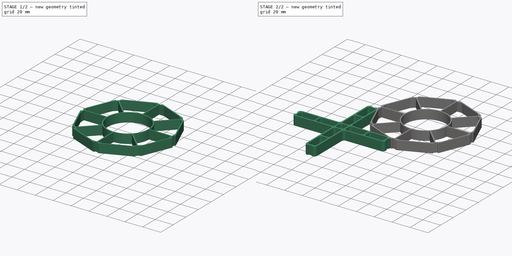
[diagram: build sequence overview — one tinted view per stage of 2, left to right]
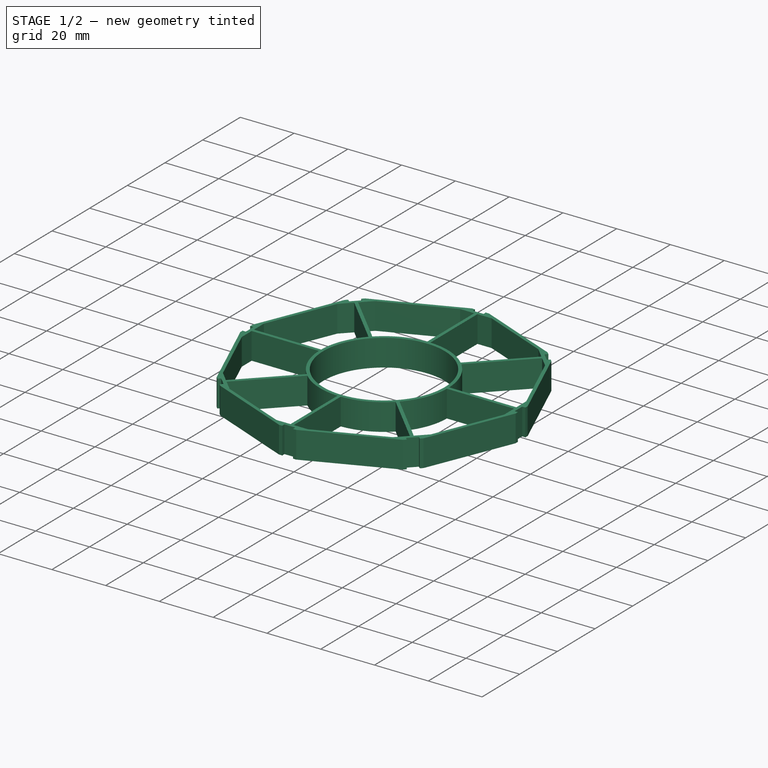
[diagram: stage 1 of 2 — iso view after this stage's code; geometry added in this stage tinted green]
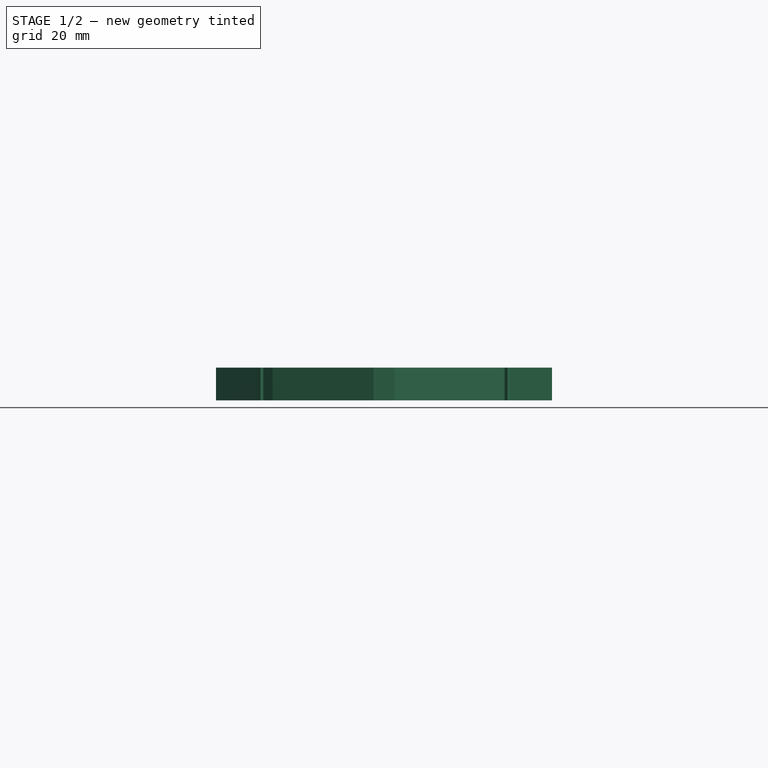
[diagram: stage 1 of 2 — front view after this stage's code; geometry added in this stage tinted green]
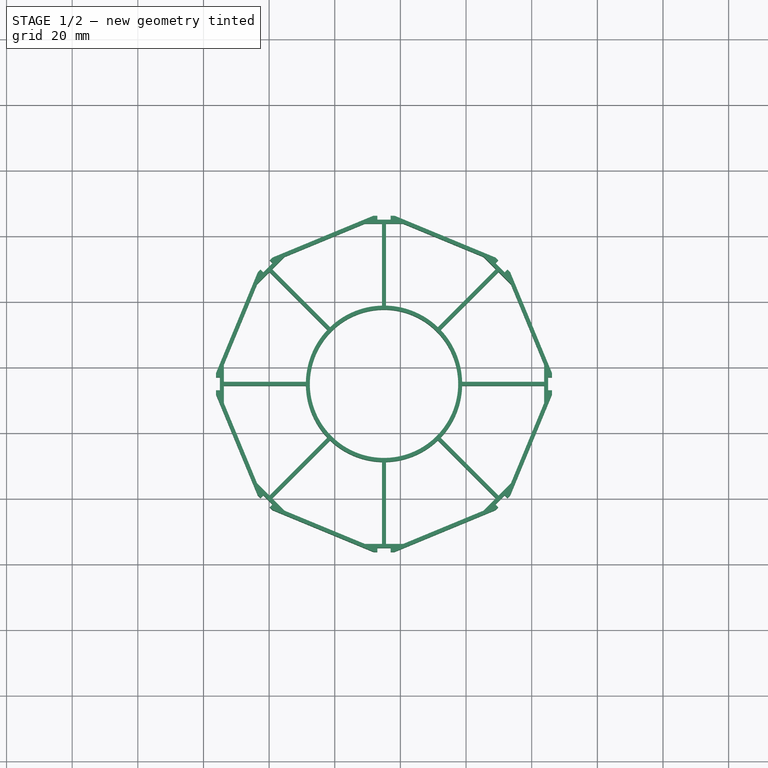
[diagram: stage 1 of 2 — top view after this stage's code; geometry added in this stage tinted green]
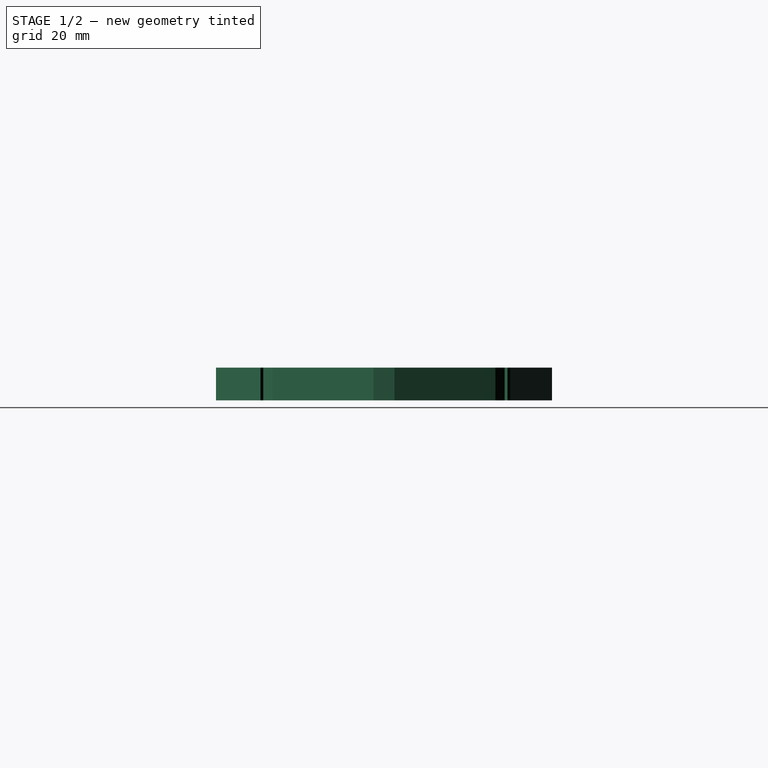
[diagram: stage 1 of 2 — right view after this stage's code; geometry added in this stage tinted green]
FCSTD DOCUMENT  (FreeCAD 0.21R33694 (Git))
Label: LengthCalibration
License: All rights reserved
LicenseURL: http://en.wikipedia.org/wiki/All_rights_reserved
objects: Sketcher::SketchObject×2, PartDesign::Pad×2, PartDesign::Body×2
note: 8 computed .brp shape members not serialized (recipe doc carries the construction recipe); baked Part::Feature solids carry a one-line shape summary decoded from their .brp

FEATURE [PartDesign::Body] Body  label="Cross"
  Group = -> [Sketch,Pad]
  Origin = -> Origin
  Tip = -> Pad
FEATURE [Sketcher::SketchObject] Sketch001
  FullyConstrained = true
  MapMode = 5
  Support = -> [XY_Plane001]
  sketch-geometry (128):
    g0: LineSegment StartX=53 StartY=105 StartZ=0 EndX=57 EndY=105 EndZ=0
    g1: LineSegment StartX=53 StartY=105 StartZ=0 EndX=53 EndY=106.2 EndZ=0
    g2: LineSegment StartX=57 StartY=105 StartZ=0 EndX=57 EndY=106.2 EndZ=0
    g3: LineSegment StartX=19.6447 StartY=90.3553 StartZ=0 EndX=90.3553 EndY=19.6447 EndZ=0
    g4: LineSegment StartX=19.6447 StartY=19.6447 StartZ=0 EndX=90.3553 EndY=90.3553 EndZ=0
    g5: LineSegment StartX=55 StartY=105 StartZ=0 EndX=55 EndY=5 EndZ=0
    g6: LineSegment StartX=5 StartY=55 StartZ=0 EndX=105 EndY=55 EndZ=0
    g7: GeomPoint X=55 Y=55 Z=0
    g8: LineSegment StartX=19.6447 StartY=90.3553 StartZ=0 EndX=19.6447 EndY=19.6447 EndZ=0
    g9: LineSegment StartX=18.2304 StartY=88.9411 StartZ=0 EndX=21.0589 EndY=91.7696 EndZ=0
    g10: LineSegment StartX=21.0589 StartY=91.7696 StartZ=0 EndX=20.2103 EndY=92.6181 EndZ=0
    g11: LineSegment StartX=18.2304 StartY=88.9411 StartZ=0 EndX=17.3819 EndY=89.7897 EndZ=0
    g12: LineSegment StartX=53 StartY=106.2 StartZ=0 EndX=51.8 EndY=106.2 EndZ=0
    g13: LineSegment StartX=57 StartY=106.2 StartZ=0 EndX=58.2 EndY=106.2 EndZ=0
    g14: LineSegment StartX=20.2103 StartY=92.6181 StartZ=0 EndX=21.0589 EndY=93.4666 EndZ=0
    g15: LineSegment StartX=17.3819 StartY=89.7897 StartZ=0 EndX=16.5334 EndY=88.9411 EndZ=0
    g16: LineSegment StartX=21.0589 StartY=93.4666 StartZ=0 EndX=51.8 EndY=106.2 EndZ=0
    g17: LineSegment StartX=53 StartY=105 StartZ=0 EndX=53 EndY=103.8 EndZ=0
    g18: LineSegment StartX=49.1416 StartY=103.8 StartZ=0 EndX=48.6824 EndY=104.909 EndZ=0
    g19: LineSegment StartX=24.6357 StartY=93.6493 StartZ=0 EndX=49.1416 EndY=103.8 EndZ=0
    g20: LineSegment StartX=18.2304 StartY=88.9411 StartZ=0 EndX=19.079 EndY=88.0926 EndZ=0
    g21: LineSegment StartX=3.8 StartY=58.2 StartZ=0 EndX=3.8 EndY=57 EndZ=0
    g22: LineSegment StartX=3.8 StartY=57 StartZ=0 EndX=5 EndY=57 EndZ=0
    g23: LineSegment StartX=5 StartY=57 StartZ=0 EndX=5 EndY=53 EndZ=0
    g24: LineSegment StartX=5 StartY=53 StartZ=0 EndX=3.8 EndY=53 EndZ=0
    g25: LineSegment StartX=3.8 StartY=53 StartZ=0 EndX=3.8 EndY=51.8 EndZ=0
    g26: LineSegment StartX=16.5334 StartY=88.9411 StartZ=0 EndX=3.8 EndY=58.2 EndZ=0
    g27: LineSegment StartX=16.3507 StartY=85.3643 StartZ=0 EndX=6.2 EndY=60.8584 EndZ=0
    g28: LineSegment StartX=16.3507 StartY=85.3643 StartZ=0 EndX=15.242 EndY=85.8235 EndZ=0
    g29: LineSegment StartX=5 StartY=53 StartZ=0 EndX=6.2 EndY=53 EndZ=0
    g30: LineSegment StartX=17.3819 StartY=20.2103 StartZ=0 EndX=16.5334 EndY=21.0589 EndZ=0
    g31: LineSegment StartX=18.2304 StartY=21.0589 StartZ=0 EndX=17.3819 EndY=20.2103 EndZ=0
    g32: LineSegment StartX=21.0589 StartY=18.2304 StartZ=0 EndX=18.2304 EndY=21.0589 EndZ=0
    g33: LineSegment StartX=21.0589 StartY=18.2304 StartZ=0 EndX=20.2103 EndY=17.3819 EndZ=0
    g34: LineSegment StartX=20.2103 StartY=17.3819 StartZ=0 EndX=21.0589 EndY=16.5334 EndZ=0
    g35: LineSegment StartX=6.2 StartY=49.1416 StartZ=0 EndX=5.09134 EndY=48.6824 EndZ=0
    g36: LineSegment StartX=3.8 StartY=51.8 StartZ=0 EndX=16.5334 EndY=21.0589 EndZ=0
    g37: LineSegment StartX=6.2 StartY=49.1416 StartZ=0 EndX=16.3507 EndY=24.6357 EndZ=0
    g38: LineSegment StartX=16.3507 StartY=85.3643 StartZ=0 EndX=20.0689 EndY=89.0825 EndZ=0
    g39: LineSegment StartX=20.0689 StartY=89.0825 StartZ=0 EndX=20.9175 EndY=89.9311 EndZ=0
    g40: LineSegment StartX=20.9175 StartY=89.9311 StartZ=0 EndX=24.6357 EndY=93.6493 EndZ=0
    g41: LineSegment StartX=20.0689 StartY=89.0825 StartZ=0 EndX=37.7466 EndY=71.4049 EndZ=0
    g42: LineSegment StartX=20.9175 StartY=89.9311 StartZ=0 EndX=38.5951 EndY=72.2534 EndZ=0
    g43: LineSegment StartX=21.0589 StartY=18.2304 StartZ=0 EndX=21.9074 EndY=19.079 EndZ=0
    g44: LineSegment StartX=21.0589 StartY=16.5334 StartZ=0 EndX=51.8 EndY=3.8 EndZ=0
    g45: LineSegment StartX=24.6357 StartY=16.3507 StartZ=0 EndX=24.1765 EndY=15.242 EndZ=0
    g46: LineSegment StartX=51.8 StartY=3.8 StartZ=0 EndX=53 EndY=3.8 EndZ=0
    g47: LineSegment StartX=53 StartY=3.8 StartZ=0 EndX=53 EndY=5 EndZ=0
    g48: LineSegment StartX=53 StartY=5 StartZ=0 EndX=57 EndY=5 EndZ=0
    g49: LineSegment StartX=57 StartY=5 StartZ=0 EndX=57 EndY=3.8 EndZ=0
    g50: LineSegment StartX=57 StartY=3.8 StartZ=0 EndX=58.2 EndY=3.8 EndZ=0
    g51: LineSegment StartX=57 StartY=5 StartZ=0 EndX=57 EndY=6.2 EndZ=0
    g52: LineSegment StartX=24.6357 StartY=16.3507 StartZ=0 EndX=49.1416 EndY=6.2 EndZ=0
    g53: LineSegment StartX=58.2 StartY=3.8 StartZ=0 EndX=88.9411 EndY=16.5334 EndZ=0
    g54: LineSegment StartX=60.8584 StartY=6.2 StartZ=0 EndX=61.3176 EndY=5.09134 EndZ=0
    g55: LineSegment StartX=89.7897 StartY=17.3819 StartZ=0 EndX=88.9411 EndY=16.5334 EndZ=0
    g56: LineSegment StartX=88.9411 StartY=18.2304 StartZ=0 EndX=89.7897 EndY=17.3819 EndZ=0
    g57: LineSegment StartX=91.7696 StartY=21.0589 StartZ=0 EndX=88.9411 EndY=18.2304 EndZ=0
    g58: LineSegment StartX=91.7696 StartY=21.0589 StartZ=0 EndX=92.6181 EndY=20.2103 EndZ=0
    g59: LineSegment StartX=92.6181 StartY=20.2103 StartZ=0 EndX=93.4666 EndY=21.0589 EndZ=0
    g60: LineSegment StartX=60.8584 StartY=6.2 StartZ=0 EndX=85.3643 EndY=16.3507 EndZ=0
    g61: LineSegment StartX=91.7696 StartY=21.0589 StartZ=0 EndX=90.921 EndY=21.9074 EndZ=0
    g62: LineSegment StartX=93.4666 StartY=21.0589 StartZ=0 EndX=106.2 EndY=51.8 EndZ=0
    g63: LineSegment StartX=93.6493 StartY=24.6357 StartZ=0 EndX=94.758 EndY=24.1765 EndZ=0
    g64: LineSegment StartX=106.2 StartY=51.8 StartZ=0 EndX=106.2 EndY=53 EndZ=0
    g65: LineSegment StartX=106.2 StartY=53 StartZ=0 EndX=105 EndY=53 EndZ=0
    g66: LineSegment StartX=105 StartY=53 StartZ=0 EndX=105 EndY=57 EndZ=0
    g67: LineSegment StartX=105 StartY=57 StartZ=0 EndX=106.2 EndY=57 EndZ=0
    g68: LineSegment StartX=106.2 StartY=57 StartZ=0 EndX=106.2 EndY=58.2 EndZ=0
    g69: LineSegment StartX=105 StartY=57 StartZ=0 EndX=103.8 EndY=57 EndZ=0
    g70: LineSegment StartX=103.8 StartY=49.1416 StartZ=0 EndX=93.6493 EndY=24.6357 EndZ=0
    g71: LineSegment StartX=106.2 StartY=58.2 StartZ=0 EndX=93.4666 EndY=88.9411 EndZ=0
    g72: LineSegment StartX=103.8 StartY=60.8584 StartZ=0 EndX=104.909 EndY=61.3176 EndZ=0
    g73: LineSegment StartX=92.6181 StartY=89.7897 StartZ=0 EndX=93.4666 EndY=88.9411 EndZ=0
    g74: LineSegment StartX=91.7696 StartY=88.9411 StartZ=0 EndX=92.6181 EndY=89.7897 EndZ=0
    g75: LineSegment StartX=88.9411 StartY=91.7696 StartZ=0 EndX=91.7696 EndY=88.9411 EndZ=0
    g76: LineSegment StartX=88.9411 StartY=91.7696 StartZ=0 EndX=89.7897 EndY=92.6181 EndZ=0
    g77: LineSegment StartX=89.7897 StartY=92.6181 StartZ=0 EndX=88.9411 EndY=93.4666 EndZ=0
    g78: LineSegment StartX=103.8 StartY=60.8584 StartZ=0 EndX=93.6493 EndY=85.3643 EndZ=0
    g79: LineSegment StartX=88.9411 StartY=91.7696 StartZ=0 EndX=88.0926 EndY=90.921 EndZ=0
    g80: LineSegment StartX=58.2 StartY=106.2 StartZ=0 EndX=88.9411 EndY=93.4666 EndZ=0
    g81: LineSegment StartX=60.8584 StartY=103.8 StartZ=0 EndX=85.3643 EndY=93.6493 EndZ=0
    g82: LineSegment StartX=85.3643 StartY=93.6493 StartZ=0 EndX=85.8235 EndY=94.758 EndZ=0
    g83: LineSegment StartX=49.1416 StartY=103.8 StartZ=0 EndX=54.4 EndY=103.8 EndZ=0
    g84: LineSegment StartX=54.4 StartY=103.8 StartZ=0 EndX=55.6 EndY=103.8 EndZ=0
    g85: LineSegment StartX=55.6 StartY=103.8 StartZ=0 EndX=60.8584 EndY=103.8 EndZ=0
    g86: LineSegment StartX=89.0825 StartY=89.9311 StartZ=0 EndX=85.3643 EndY=93.6493 EndZ=0
    g87: LineSegment StartX=93.6493 StartY=85.3643 StartZ=0 EndX=89.9311 EndY=89.0825 EndZ=0
    g88: LineSegment StartX=89.9311 StartY=89.0825 StartZ=0 EndX=89.0825 EndY=89.9311 EndZ=0
    g89: LineSegment StartX=103.8 StartY=60.8584 StartZ=0 EndX=103.8 EndY=55.6 EndZ=0
    g90: LineSegment StartX=103.8 StartY=55.6 StartZ=0 EndX=103.8 EndY=54.4 EndZ=0
    g91: LineSegment StartX=103.8 StartY=54.4 StartZ=0 EndX=103.8 EndY=49.1416 EndZ=0
    g92: LineSegment StartX=89.9311 StartY=20.9175 StartZ=0 EndX=93.6493 EndY=24.6357 EndZ=0
    g93: LineSegment StartX=85.3643 StartY=16.3507 StartZ=0 EndX=89.0825 EndY=20.0689 EndZ=0
    g94: LineSegment StartX=89.0825 StartY=20.0689 StartZ=0 EndX=89.9311 EndY=20.9175 EndZ=0
    g95: LineSegment StartX=55.6 StartY=6.2 StartZ=0 EndX=60.8584 EndY=6.2 EndZ=0
    g96: LineSegment StartX=49.1416 StartY=6.2 StartZ=0 EndX=54.4 EndY=6.2 EndZ=0
    g97: LineSegment StartX=54.4 StartY=6.2 StartZ=0 EndX=55.6 EndY=6.2 EndZ=0
    g98: LineSegment StartX=20.9175 StartY=20.0689 StartZ=0 EndX=24.6357 EndY=16.3507 EndZ=0
    g99: LineSegment StartX=16.3507 StartY=24.6357 StartZ=0 EndX=20.0689 EndY=20.9175 EndZ=0
    g100: LineSegment StartX=20.0689 StartY=20.9175 StartZ=0 EndX=20.9175 EndY=20.0689 EndZ=0
    g101: LineSegment StartX=6.2 StartY=54.4 StartZ=0 EndX=6.2 EndY=49.1416 EndZ=0
    g102: LineSegment StartX=6.2 StartY=60.8584 StartZ=0 EndX=6.2 EndY=55.6 EndZ=0
    g103: LineSegment StartX=6.2 StartY=55.6 StartZ=0 EndX=6.2 EndY=54.4 EndZ=0
    g104: LineSegment StartX=6.2 StartY=55.6 StartZ=0 EndX=31.2 EndY=55.6 EndZ=0
    g105: LineSegment StartX=6.2 StartY=54.4 StartZ=0 EndX=31.2 EndY=54.4 EndZ=0
    g106: LineSegment StartX=54.4 StartY=103.8 StartZ=0 EndX=54.4 EndY=78.8 EndZ=0
    g107: LineSegment StartX=55.6 StartY=103.8 StartZ=0 EndX=55.6 EndY=78.8 EndZ=0
    g108: LineSegment StartX=89.0825 StartY=89.9311 StartZ=0 EndX=71.4049 EndY=72.2534 EndZ=0
    g109: LineSegment StartX=89.9311 StartY=89.0825 StartZ=0 EndX=72.2534 EndY=71.4049 EndZ=0
    g110: LineSegment StartX=103.8 StartY=55.6 StartZ=0 EndX=78.8 EndY=55.6 EndZ=0
    g111: LineSegment StartX=103.8 StartY=54.4 StartZ=0 EndX=78.8 EndY=54.4 EndZ=0
    g112: LineSegment StartX=89.9311 StartY=20.9175 StartZ=0 EndX=72.2534 EndY=38.5951 EndZ=0
    g113: LineSegment StartX=89.0825 StartY=20.0689 StartZ=0 EndX=71.4049 EndY=37.7466 EndZ=0
    g114: LineSegment StartX=55.6 StartY=6.2 StartZ=0 EndX=55.6 EndY=31.2 EndZ=0
    g115: LineSegment StartX=54.4 StartY=6.2 StartZ=0 EndX=54.4 EndY=31.2 EndZ=0
    g116: LineSegment StartX=20.9175 StartY=20.0689 StartZ=0 EndX=38.5951 EndY=37.7466 EndZ=0
    g117: LineSegment StartX=20.0689 StartY=20.9175 StartZ=0 EndX=37.7466 EndY=38.5951 EndZ=0
    g118: ArcOfCircle CenterX=55 CenterY=55 CenterZ=0 NormalX=0 NormalY=0 NormalZ=1 AngleXU=0 Radius=23.8076 StartAngle=0.810603 EndAngle=1.54559
    g119: ArcOfCircle CenterX=55 CenterY=55 CenterZ=0 NormalX=0 NormalY=0 NormalZ=1 AngleXU=0 Radius=23.8076 StartAngle=1.596 EndAngle=2.33099
    g120: ArcOfCircle CenterX=55 CenterY=55 CenterZ=0 NormalX=0 NormalY=0 NormalZ=1 AngleXU=0 Radius=23.8076 StartAngle=0.0252047 EndAngle=0.760193
    g121: ArcOfCircle CenterX=55 CenterY=55 CenterZ=0 NormalX=0 NormalY=0 NormalZ=1 AngleXU=0 Radius=23.8076 StartAngle=5.52299 EndAngle=6.25798
    g122: ArcOfCircle CenterX=55 CenterY=55 CenterZ=0 NormalX=0 NormalY=0 NormalZ=1 AngleXU=0 Radius=23.8076 StartAngle=4.73759 EndAngle=5.47258
    g123: ArcOfCircle CenterX=55 CenterY=55 CenterZ=0 NormalX=0 NormalY=0 NormalZ=1 AngleXU=0 Radius=23.8076 StartAngle=3.9522 EndAngle=4.68718
    g124: ArcOfCircle CenterX=55 CenterY=55 CenterZ=0 NormalX=0 NormalY=0 NormalZ=1 AngleXU=0 Radius=23.8076 StartAngle=3.1668 EndAngle=3.90179
    g125: ArcOfCircle CenterX=55 CenterY=55 CenterZ=0 NormalX=0 NormalY=0 NormalZ=1 AngleXU=0 Radius=23.8076 StartAngle=2.3814 EndAngle=3.11639
    g126: Circle CenterX=55 CenterY=55 CenterZ=0 NormalX=0 NormalY=0 NormalZ=1 AngleXU=0 Radius=22.6076
    g127: LineSegment StartX=38.5951 StartY=72.2534 StartZ=0 EndX=39.422 EndY=71.3838 EndZ=0
  constraints (364):
    c: Coincident(g1,g0)
    c: Vertical(g1)
    c: Coincident(g2,g0)
    c: Vertical(g2)
    c: DistanceX(g1,g2) = 4
    c: DistanceY(g1,g1) = 1.2
    c: Perpendicular(g4,g3)
    c: Vertical(g5)
    c: Horizontal(g6)
    c: DistanceY(g5,g5) = 100
    c: Equal(g5,g6)
    c: Equal(g6,g4)
    c: Symmetric(g5,g5,g7)
    c: Symmetric(g6,g6,g7)
    c: Symmetric(g4,g4,g7)
    c: Symmetric(g3,g3,g7)
    c: Symmetric(g3,g4,g5)
    c: Coincident(g8,g3)
    c: Coincident(g8,g4)
    c: Horizontal(g0)
    c: Symmetric(g0,g0,g5)
    c: Coincident(g10,g9)
    c: Coincident(g11,g9)
    c: Perpendicular(g9,g11)
    c: Perpendicular(g10,g9)
    c: Perpendicular(g9,g3)
    c: Symmetric(g9,g9,g3)
    c: Equal(g0,g9)
    c: Coincident(g12,g1)
    c: Horizontal(g12)
    c: Coincident(g13,g2)
    c: Horizontal(g13)
    c: Equal(g13,g2)
    c: Equal(g2,g1)
    c: Equal(g1,g12)
    c: Coincident(g14,g10)
    c: Coincident(g15,g11)
    c: Perpendicular(g11,g15)
    c: Perpendicular(g14,g10)
    c: Coincident(g16,g14)
    c: Coincident(g16,g12)
    c: Coincident(g17,g0)
    c: Vertical(g17)
    c: Coincident(g18,g83)
    c: PointOnObject(g18,g16)
    c: Perpendicular(g18,g16)
    c: Equal(g12,g17)
    c: Equal(g17,g18)
    c: Equal(g18,g14)
    c: Equal(g14,g10)
    c: Equal(g10,g11)
    c: Equal(g11,g15)
    c: Coincident(g19,g40)
    c: Coincident(g19,g83)
    c: Coincident(g20,g9)
    c: Equal(g15,g20)
    c: Parallel(g19,g16)
    c: Vertical(g21)
    c: Coincident(g21,g22)
    c: Horizontal(g22)
    c: Coincident(g22,g23)
    c: Vertical(g23)
    c: Coincident(g23,g24)
    c: Horizontal(g24)
    c: Coincident(g24,g25)
    c: Vertical(g25)
    c: Coincident(g26,g15)
    c: Coincident(g26,g21)
    c: Coincident(g27,g38)
    c: Coincident(g28,g38)
    c: PointOnObject(g28,g26)
    c: Perpendicular(g26,g28)
    c: Equal(g20,g28)
    c: Symmetric(g22,g23,g6)
    c: Equal(g9,g23)
    c: Equal(g28,g21)
    c: Equal(g21,g22)
    c: Equal(g22,g24)
    c: Equal(g24,g25)
    c: Parallel(g27,g26)
    c: Coincident(g102,g27)
    c: Coincident(g29,g23)
    c: Horizontal(g29)
    c: Equal(g25,g29)
    c: Coincident(g31,g32)
    c: Coincident(g33,g32)
    c: Perpendicular(g32,g33)
    c: Perpendicular(g31,g32)
    c: Coincident(g30,g31)
    c: Coincident(g34,g33)
    c: Perpendicular(g33,g34)
    c: Perpendicular(g30,g31)
    c: Equal(g30,g31)
    c: Equal(g31,g33)
    c: Symmetric(g31,g32,g4)
    c: Coincident(g35,g101)
    c: Equal(g29,g35)
    c: Equal(g35,g30)
    c: Equal(g23,g32)
    c: Equal(g34,g33)
    c: Perpendicular(g4,g32)
    c: Coincident(g36,g25)
    c: Coincident(g36,g30)
    c: PointOnObject(g35,g36)
    c: Perpendicular(g36,g35)
    c: Coincident(g37,g101)
    c: Parallel(g37,g36)
    c: Coincident(g38,g39)
    c: Parallel(g38,g9)
    c: PointOnObject(g20,g38)
    c: Perpendicular(g38,g20)
    c: Coincident(g39,g40)
    c: Parallel(g40,g9)
    c: Equal(g39,g20)
    c: Coincident(g41,g38)
    c: Coincident(g42,g40)
    c: Parallel(g41,g42)
    c: Parallel(g42,g3)
    c: Equal(g42,g41)
    c: Distance(g41) = 25
    c: Coincident(g99,g37)
    c: Coincident(g43,g32)
    c: Equal(g34,g43)
    c: Coincident(g44,g34)
    c: Coincident(g45,g98)
    c: PointOnObject(g45,g44)
    c: Perpendicular(g44,g45)
    c: Equal(g45,g43)
    c: DistanceX(g-1,g5) = 55
    c: DistanceY(g-1,g6) = 55
    c: Horizontal(g46)
    c: Coincident(g46,g47)
    c: Vertical(g47)
    c: Coincident(g47,g48)
    c: Horizontal(g48)
    c: Coincident(g48,g49)
    c: Vertical(g49)
    c: Coincident(g49,g50)
    c: Horizontal(g50)
    c: Symmetric(g47,g48,g5)
    c: Equal(g32,g48)
    c: Equal(g45,g46)
    c: Equal(g46,g47)
    c: Equal(g47,g49)
    c: Equal(g49,g50)
    c: Coincident(g44,g46)
    c: Coincident(g51,g48)
    c: Vertical(g51)
    c: Equal(g50,g51)
    c: Coincident(g52,g98)
    c: Coincident(g52,g96)
    c: Parallel(g52,g44)
    c: Coincident(g53,g50)
    c: Coincident(g54,g95)
    c: PointOnObject(g54,g53)
    c: Perpendicular(g53,g54)
    c: Equal(g51,g54)
    c: Coincident(g56,g57)
    c: Coincident(g58,g57)
    c: Perpendicular(g57,g58)
    c: Perpendicular(g56,g57)
    c: Coincident(g55,g56)
    c: Coincident(g59,g58)
    c: Perpendicular(g58,g59)
    c: Perpendicular(g55,g56)
    c: Equal(g55,g56)
    c: Equal(g56,g58)
    c: Equal(g59,g58)
    c: Equal(g48,g57)
    c: Equal(g54,g55)
    c: Symmetric(g56,g57,g3)
    c: Perpendicular(g3,g57)
    c: Coincident(g55,g53)
    c: Coincident(g60,g95)
    c: Parallel(g53,g60)
    c: Coincident(g61,g57)
    c: Coincident(g93,g60)
    c: Equal(g59,g61)
    c: Coincident(g62,g59)
    c: Coincident(g63,g92)
    c: PointOnObject(g63,g62)
    c: Perpendicular(g62,g63)
    c: Equal(g61,g63)
    c: Coincident(g62,g64)
    c: Vertical(g64)
    c: Coincident(g64,g65)
    c: Horizontal(g65)
    c: Coincident(g65,g66)
    c: Vertical(g66)
    c: Coincident(g66,g67)
    c: Horizontal(g67)
    c: Coincident(g67,g68)
    c: Vertical(g68)
    c: Equal(g57,g66)
    c: Equal(g63,g64)
    c: Equal(g64,g65)
    c: Equal(g65,g67)
    c: Equal(g67,g68)
    c: Symmetric(g66,g65,g6)
    c: Coincident(g69,g66)
    c: Horizontal(g69)
    c: Equal(g68,g69)
    c: Coincident(g70,g91)
    c: Coincident(g70,g92)
    c: Parallel(g70,g62)
    c: Coincident(g71,g68)
    c: Coincident(g72,g89)
    c: PointOnObject(g72,g71)
    c: Perpendicular(g71,g72)
    c: Equal(g69,g72)
    c: Coincident(g74,g75)
    c: Coincident(g76,g75)
    c: Perpendicular(g75,g76)
    c: Perpendicular(g74,g75)
    c: Coincident(g73,g74)
    c: Coincident(g77,g76)
    c: Perpendicular(g76,g77)
    c: Perpendicular(g73,g74)
    c: Equal(g73,g74)
    c: Equal(g74,g76)
    c: Equal(g77,g76)
    c: Equal(g66,g75)
    c: Equal(g72,g73)
    c: Symmetric(g74,g75,g4)
    c: Coincident(g73,g71)
    c: Perpendicular(g4,g75)
    c: Coincident(g78,g89)
    c: Coincident(g87,g78)
    c: Parallel(g78,g71)
    c: Coincident(g79,g75)
    c: Equal(g77,g79)
    c: Coincident(g80,g13)
    c: Coincident(g80,g77)
    c: Coincident(g81,g85)
    c: Coincident(g81,g86)
    c: Coincident(g82,g86)
    c: PointOnObject(g82,g80)
    c: Perpendicular(g80,g82)
    c: Equal(g79,g82)
    c: Parallel(g81,g80)
    c: Coincident(g83,g84)
    c: Horizontal(g83)
    c: PointOnObject(g17,g83)
    c: Coincident(g84,g85)
    c: Horizontal(g84)
    c: Horizontal(g85)
    c: Equal(g84,g39)
    c: Equal(g38,g40)
    c: Parallel(g39,g9)
    c: Equal(g40,g83)
    c: Coincident(g88,g86)
    c: Parallel(g86,g75)
    c: Coincident(g87,g88)
    c: Parallel(g87,g75)
    c: Parallel(g88,g75)
    c: PointOnObject(g79,g87)
    c: Perpendicular(g87,g79)
    c: Equal(g85,g86)
    c: Equal(g86,g87)
    c: Coincident(g89,g90)
    c: Vertical(g89)
    c: PointOnObject(g69,g89)
    c: Coincident(g90,g91)
    c: Vertical(g90)
    c: Vertical(g91)
    c: Equal(g87,g89)
    c: Equal(g89,g91)
    c: Coincident(g94,g92)
    c: Perpendicular(g92,g61)
    c: Coincident(g93,g94)
    c: PointOnObject(g61,g93)
    c: Perpendicular(g93,g61)
    c: Perpendicular(g94,g61)
    c: Parallel(g93,g57)
    c: Equal(g91,g92)
    c: Equal(g92,g93)
    c: Coincident(g97,g95)
    c: Horizontal(g95)
    c: Coincident(g96,g97)
    c: Horizontal(g96)
    c: Horizontal(g97)
    c: PointOnObject(g51,g96)
    c: Equal(g93,g95)
    c: Equal(g95,g96)
    c: Coincident(g100,g98)
    c: Parallel(g98,g32)
    c: Coincident(g99,g100)
    c: Parallel(g99,g32)
    c: Parallel(g100,g32)
    c: PointOnObject(g43,g99)
    c: Perpendicular(g99,g43)
    c: Equal(g96,g98)
    c: Equal(g98,g99)
    c: Coincident(g103,g101)
    c: Vertical(g101)
    c: Coincident(g102,g103)
    c: Vertical(g102)
    c: Vertical(g103)
    c: PointOnObject(g29,g102)
    c: Equal(g99,g101)
    c: Equal(g101,g102)
    c: Coincident(g104,g102)
    c: Horizontal(g104)
    c: Coincident(g105,g101)
    c: Horizontal(g105)
    c: Coincident(g106,g83)
    c: Vertical(g106)
    c: Coincident(g107,g85)
    c: Vertical(g107)
    c: Coincident(g108,g86)
    c: Coincident(g109,g87)
    c: Coincident(g110,g89)
    c: Horizontal(g110)
    c: Coincident(g111,g91)
    c: Horizontal(g111)
    c: Parallel(g4,g108)
    c: Parallel(g108,g109)
    c: Coincident(g112,g92)
    c: Coincident(g113,g93)
    c: Parallel(g3,g112)
    c: Parallel(g112,g113)
    c: Coincident(g114,g95)
    c: Vertical(g114)
    c: Coincident(g115,g96)
    c: Vertical(g115)
    c: Coincident(g116,g98)
    c: Coincident(g117,g99)
    c: Parallel(g4,g116)
    c: Parallel(g116,g117)
    c: Equal(g106,g107)
    c: Equal(g108,g109)
    c: Equal(g110,g111)
    c: Equal(g112,g113)
    c: Equal(g114,g115)
    c: Coincident(g118,g107)
    c: Coincident(g118,g108)
    c: Coincident(g119,g118)
    c: Coincident(g119,g42)
    c: Coincident(g119,g106)
    c: Coincident(g118,g7)
    c: Coincident(g120,g118)
    c: Coincident(g120,g109)
    c: Coincident(g120,g110)
    c: Coincident(g121,g118)
    c: Coincident(g121,g111)
    c: Coincident(g121,g112)
    c: Coincident(g122,g118)
    c: Coincident(g122,g113)
    c: Coincident(g122,g114)
    c: Coincident(g123,g118)
    c: Coincident(g123,g115)
    c: Coincident(g123,g116)
    c: Coincident(g124,g118)
    c: Coincident(g124,g117)
    c: Coincident(g124,g105)
    c: Equal(g116,g117)
    c: Coincident(g125,g118)
    c: Coincident(g125,g104)
    c: Coincident(g125,g41)
    c: Coincident(g126,g118)
    c: Coincident(g127,g42)
    c: PointOnObject(g127,g126)
    c: PointOnObject(g118,g127)
    c: Equal(g39,g127)
FEATURE [PartDesign::Pad] Pad001
  Direction = (0,0,1)
  Length = 10
  Length2 = 10
  Profile = -> Sketch001
  ReferenceAxis = -> Sketch001 [N_Axis]
  Type = 0
FEATURE [PartDesign::Body] Body001  label="Octa"
  Group = -> [Sketch001,Pad001]
  Origin = -> Origin001
  Tip = -> Pad001
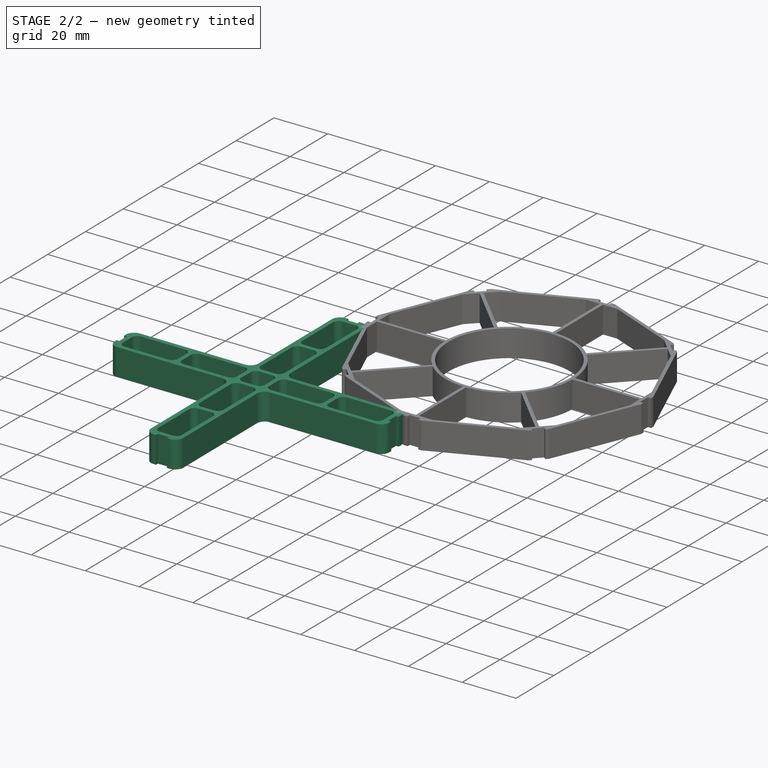
[diagram: stage 2 of 2 — iso view after this stage's code; geometry added in this stage tinted green]
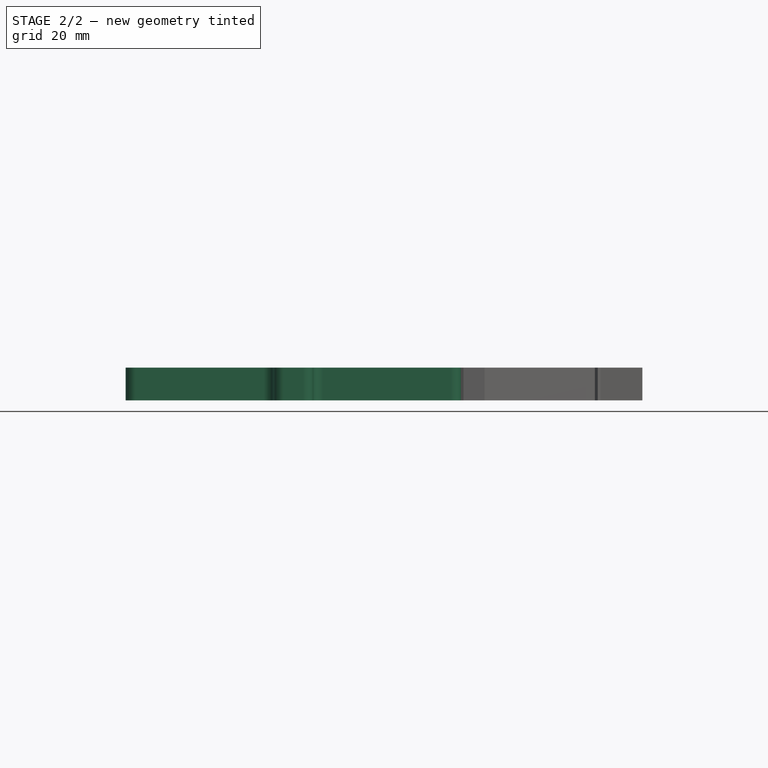
[diagram: stage 2 of 2 — front view after this stage's code; geometry added in this stage tinted green]
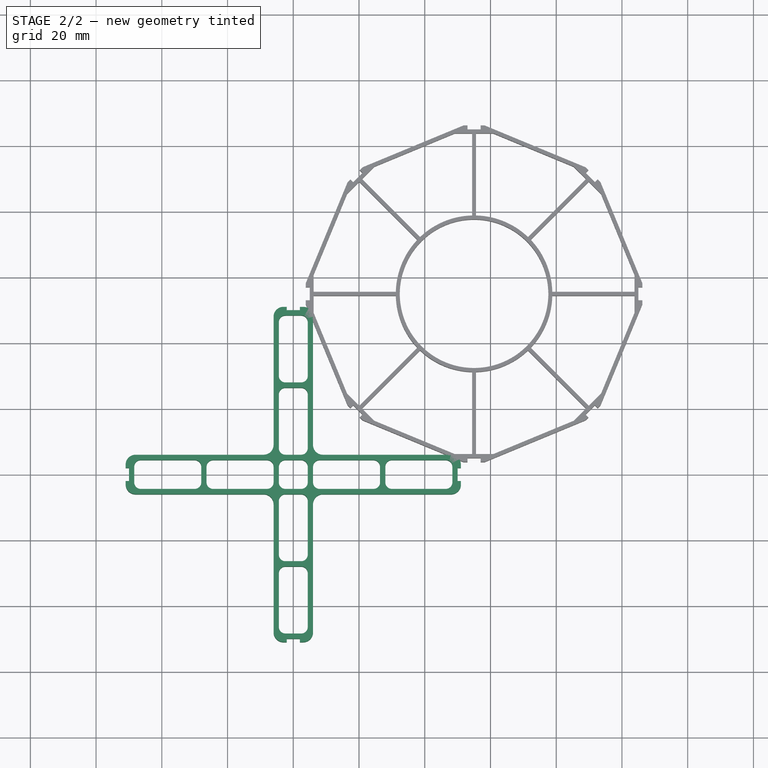
[diagram: stage 2 of 2 — top view after this stage's code; geometry added in this stage tinted green]
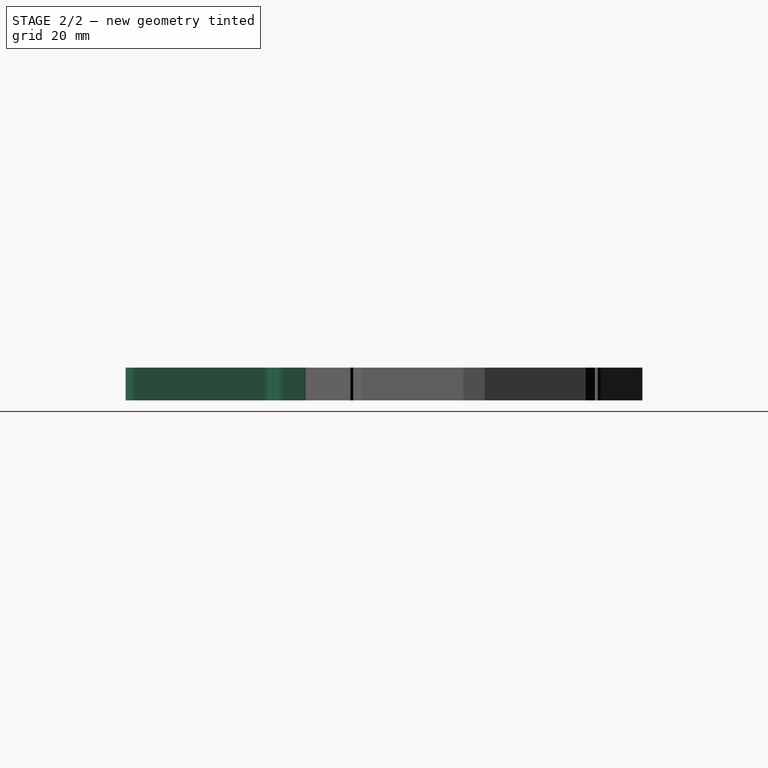
[diagram: stage 2 of 2 — right view after this stage's code; geometry added in this stage tinted green]
FEATURE [Sketcher::SketchObject] Sketch
  FullyConstrained = true
  MapMode = 5
  Support = -> [XY_Plane]
  sketch-geometry (149):
    g0: ArcOfCircle CenterX=-3 CenterY=48 CenterZ=0 NormalX=0 NormalY=0 NormalZ=1 AngleXU=0 Radius=3 StartAngle=1.5708 EndAngle=3.14159
    g1: ArcOfCircle CenterX=3 CenterY=48 CenterZ=0 NormalX=0 NormalY=0 NormalZ=1 AngleXU=0 Radius=3 StartAngle=5.8091e-12 EndAngle=1.5708
    g2: LineSegment StartX=6 StartY=48 StartZ=0 EndX=6 EndY=9 EndZ=0
    g3: ArcOfCircle CenterX=3 CenterY=-48 CenterZ=0 NormalX=0 NormalY=0 NormalZ=1 AngleXU=0 Radius=3 StartAngle=4.71239 EndAngle=6.28319
    g4: ArcOfCircle CenterX=-3 CenterY=-48 CenterZ=0 NormalX=0 NormalY=0 NormalZ=1 AngleXU=0 Radius=3 StartAngle=3.14159 EndAngle=4.71239
    g5: LineSegment StartX=-6 StartY=-48 StartZ=0 EndX=-6 EndY=-9 EndZ=0
    g6: GeomPoint X=6 Y=-51 Z=0
    g7: ArcOfCircle CenterX=-48 CenterY=3 CenterZ=0 NormalX=0 NormalY=0 NormalZ=1 AngleXU=0 Radius=3 StartAngle=1.5708 EndAngle=3.14159
    g8: LineSegment StartX=-48 StartY=6 StartZ=0 EndX=-9 EndY=6 EndZ=0
    g9: ArcOfCircle CenterX=48 CenterY=3 CenterZ=0 NormalX=0 NormalY=0 NormalZ=1 AngleXU=0 Radius=3 StartAngle=1.0021e-11 EndAngle=1.5708
    g10: ArcOfCircle CenterX=48 CenterY=-3 CenterZ=0 NormalX=0 NormalY=0 NormalZ=1 AngleXU=0 Radius=3 StartAngle=4.71239 EndAngle=6.28319
    g11: LineSegment StartX=48 StartY=-6 StartZ=0 EndX=9 EndY=-6 EndZ=0
    g12: ArcOfCircle CenterX=-48 CenterY=-3 CenterZ=0 NormalX=0 NormalY=0 NormalZ=1 AngleXU=0 Radius=3 StartAngle=3.14159 EndAngle=4.71239
    g13: GeomPoint X=-51 Y=6 Z=0
    g14: GeomPoint X=51 Y=-6 Z=0
    g15: LineSegment StartX=-3 StartY=51 StartZ=0 EndX=-2 EndY=51 EndZ=0
    g16: LineSegment StartX=-2 StartY=51 StartZ=0 EndX=-2 EndY=50 EndZ=0
    g17: LineSegment StartX=-2 StartY=50 StartZ=0 EndX=2 EndY=50 EndZ=0
    g18: LineSegment StartX=2 StartY=50 StartZ=0 EndX=2 EndY=51 EndZ=0
    g19: LineSegment StartX=2 StartY=51 StartZ=0 EndX=3 EndY=51 EndZ=0
    g20: LineSegment StartX=-6 StartY=9 StartZ=0 EndX=-6 EndY=48 EndZ=0
    g21: LineSegment StartX=9 StartY=6 StartZ=0 EndX=48 EndY=6 EndZ=0
    g22: LineSegment StartX=6 StartY=-9 StartZ=0 EndX=6 EndY=-48 EndZ=0
    g23: LineSegment StartX=-9 StartY=-6 StartZ=0 EndX=-48 EndY=-6 EndZ=0
    g24: ArcOfCircle CenterX=-9 CenterY=9 CenterZ=0 NormalX=0 NormalY=0 NormalZ=1 AngleXU=0 Radius=3 StartAngle=4.71239 EndAngle=6.28319
    g25: ArcOfCircle CenterX=9 CenterY=9 CenterZ=0 NormalX=0 NormalY=0 NormalZ=1 AngleXU=0 Radius=3 StartAngle=3.14159 EndAngle=4.71239
    g26: ArcOfCircle CenterX=9 CenterY=-9 CenterZ=0 NormalX=0 NormalY=0 NormalZ=1 AngleXU=0 Radius=3 StartAngle=1.5708 EndAngle=3.14159
    g27: ArcOfCircle CenterX=-9 CenterY=-9 CenterZ=0 NormalX=0 NormalY=0 NormalZ=1 AngleXU=0 Radius=3 StartAngle=9.31e-14 EndAngle=1.5708
    g28: LineSegment StartX=-51 StartY=2 StartZ=0 EndX=-51 EndY=3 EndZ=0
    g29: LineSegment StartX=-50 StartY=2 StartZ=0 EndX=-51 EndY=2 EndZ=0
    g30: LineSegment StartX=-50 StartY=-2 StartZ=0 EndX=-50 EndY=2 EndZ=0
    g31: LineSegment StartX=-51 StartY=-3 StartZ=0 EndX=-51 EndY=-2 EndZ=0
    g32: LineSegment StartX=-51 StartY=-2 StartZ=0 EndX=-50 EndY=-2 EndZ=0
    g33: LineSegment StartX=51 StartY=3 StartZ=0 EndX=51 EndY=2 EndZ=0
    g34: LineSegment StartX=51 StartY=2 StartZ=0 EndX=50 EndY=2 EndZ=0
    g35: LineSegment StartX=50 StartY=2 StartZ=0 EndX=50 EndY=-2 EndZ=0
    g36: LineSegment StartX=50 StartY=-2 StartZ=0 EndX=51 EndY=-2 EndZ=0
    g37: LineSegment StartX=51 StartY=-2 StartZ=0 EndX=51 EndY=-3 EndZ=0
    g38: LineSegment StartX=-2 StartY=-51 StartZ=0 EndX=-3 EndY=-51 EndZ=0
    g39: LineSegment StartX=-2 StartY=-50 StartZ=0 EndX=-2 EndY=-51 EndZ=0
    g40: LineSegment StartX=2 StartY=-50 StartZ=0 EndX=-2 EndY=-50 EndZ=0
    g41: LineSegment StartX=3 StartY=-51 StartZ=0 EndX=2 EndY=-51 EndZ=0
    g42: LineSegment StartX=2 StartY=-51 StartZ=0 EndX=2 EndY=-50 EndZ=0
    g43: ArcOfCircle CenterX=-2.4 CenterY=46.4 CenterZ=0 NormalX=0 NormalY=0 NormalZ=1 AngleXU=0 Radius=2 StartAngle=1.5708 EndAngle=3.14159
    g44: LineSegment StartX=-2.4 StartY=48.4 StartZ=0 EndX=2.4 EndY=48.4 EndZ=0
    g45: ArcOfCircle CenterX=2.4 CenterY=46.4 CenterZ=0 NormalX=0 NormalY=0 NormalZ=1 AngleXU=0 Radius=2 StartAngle=2.86e-14 EndAngle=1.5708
    g46: LineSegment StartX=4.4 StartY=46.4 StartZ=0 EndX=4.4 EndY=30 EndZ=0
    g47: ArcOfCircle CenterX=2.4 CenterY=30 CenterZ=0 NormalX=0 NormalY=0 NormalZ=1 AngleXU=0 Radius=2 StartAngle=4.71239 EndAngle=6.28319
    g48: LineSegment StartX=2.4 StartY=28 StartZ=0 EndX=-2.4 EndY=28 EndZ=0
    g49: ArcOfCircle CenterX=-2.4 CenterY=30 CenterZ=0 NormalX=0 NormalY=0 NormalZ=1 AngleXU=0 Radius=2 StartAngle=3.14159 EndAngle=4.71239
    g50: LineSegment StartX=-4.4 StartY=30 StartZ=0 EndX=-4.4 EndY=46.4 EndZ=0
    g51: GeomPoint X=-4.4 Y=48.4 Z=0
    g52: GeomPoint X=4.4 Y=28 Z=0
    g53: ArcOfCircle CenterX=30 CenterY=2.4 CenterZ=0 NormalX=0 NormalY=0 NormalZ=1 AngleXU=0 Radius=2 StartAngle=1.5708 EndAngle=3.14159
    g54: LineSegment StartX=30 StartY=4.4 StartZ=0 EndX=46.4 EndY=4.4 EndZ=0
    g55: ArcOfCircle CenterX=46.4 CenterY=2.4 CenterZ=0 NormalX=0 NormalY=0 NormalZ=1 AngleXU=0 Radius=2 StartAngle=-7.9e-14 EndAngle=1.5708
    g56: LineSegment StartX=48.4 StartY=2.4 StartZ=0 EndX=48.4 EndY=-2.4 EndZ=0
    g57: ArcOfCircle CenterX=46.4 CenterY=-2.4 CenterZ=0 NormalX=0 NormalY=0 NormalZ=1 AngleXU=0 Radius=2 StartAngle=4.71239 EndAngle=6.28319
    g58: LineSegment StartX=46.4 StartY=-4.4 StartZ=0 EndX=30 EndY=-4.4 EndZ=0
    g59: ArcOfCircle CenterX=30 CenterY=-2.4 CenterZ=0 NormalX=0 NormalY=0 NormalZ=1 AngleXU=0 Radius=2 StartAngle=3.14159 EndAngle=4.71239
    g60: LineSegment StartX=28 StartY=-2.4 StartZ=0 EndX=28 EndY=2.4 EndZ=0
    g61: GeomPoint X=28 Y=4.4 Z=0
    g62: GeomPoint X=48.4 Y=-4.4 Z=0
    g63: ArcOfCircle CenterX=-2.4 CenterY=-30 CenterZ=0 NormalX=0 NormalY=0 NormalZ=1 AngleXU=0 Radius=2 StartAngle=1.5708 EndAngle=3.14159
    g64: LineSegment StartX=-2.4 StartY=-28 StartZ=0 EndX=2.4 EndY=-28 EndZ=0
    g65: ArcOfCircle CenterX=2.4 CenterY=-30 CenterZ=0 NormalX=0 NormalY=0 NormalZ=1 AngleXU=0 Radius=2 StartAngle=-4.521e-13 EndAngle=1.5708
    g66: LineSegment StartX=4.4 StartY=-30 StartZ=0 EndX=4.4 EndY=-46.4 EndZ=0
    g67: ArcOfCircle CenterX=2.4 CenterY=-46.4 CenterZ=0 NormalX=0 NormalY=0 NormalZ=1 AngleXU=0 Radius=2 StartAngle=4.71239 EndAngle=6.28319
    g68: LineSegment StartX=2.4 StartY=-48.4 StartZ=0 EndX=-2.4 EndY=-48.4 EndZ=0
    g69: ArcOfCircle CenterX=-2.4 CenterY=-46.4 CenterZ=0 NormalX=0 NormalY=0 NormalZ=1 AngleXU=0 Radius=2 StartAngle=3.14159 EndAngle=4.71239
    g70: LineSegment StartX=-4.4 StartY=-46.4 StartZ=0 EndX=-4.4 EndY=-30 EndZ=0
    g71: GeomPoint X=-4.4 Y=-28 Z=0
    g72: GeomPoint X=4.4 Y=-48.4 Z=0
    g73: ArcOfCircle CenterX=-46.4 CenterY=2.4 CenterZ=0 NormalX=0 NormalY=0 NormalZ=1 AngleXU=0 Radius=2 StartAngle=1.5708 EndAngle=3.14159
    g74: LineSegment StartX=-46.4 StartY=4.4 StartZ=0 EndX=-30 EndY=4.4 EndZ=0
    g75: ArcOfCircle CenterX=-30 CenterY=2.4 CenterZ=0 NormalX=0 NormalY=0 NormalZ=1 AngleXU=0 Radius=2 StartAngle=-9.06e-14 EndAngle=1.5708
    g76: LineSegment StartX=-28 StartY=2.4 StartZ=0 EndX=-28 EndY=-2.4 EndZ=0
    g77: ArcOfCircle CenterX=-30 CenterY=-2.4 CenterZ=0 NormalX=0 NormalY=0 NormalZ=1 AngleXU=0 Radius=2 StartAngle=4.71239 EndAngle=6.28319
    g78: LineSegment StartX=-30 StartY=-4.4 StartZ=0 EndX=-46.4 EndY=-4.4 EndZ=0
    g79: ArcOfCircle CenterX=-46.4 CenterY=-2.4 CenterZ=0 NormalX=0 NormalY=0 NormalZ=1 AngleXU=0 Radius=2 StartAngle=3.14159 EndAngle=4.71239
    g80: LineSegment StartX=-48.4 StartY=-2.4 StartZ=0 EndX=-48.4 EndY=2.4 EndZ=0
    g81: GeomPoint X=-48.4 Y=4.4 Z=0
    g82: GeomPoint X=-28 Y=-4.4 Z=0
    g83: LineSegment StartX=-2 StartY=50 StartZ=0 EndX=-2 EndY=48.4 EndZ=0
    g84: LineSegment StartX=-4.4 StartY=46.4 StartZ=0 EndX=-6 EndY=46.4 EndZ=0
    g85: LineSegment StartX=4.4 StartY=46.4 StartZ=0 EndX=6 EndY=46.4 EndZ=0
    g86: LineSegment StartX=-46.4 StartY=4.4 StartZ=0 EndX=-46.4 EndY=6 EndZ=0
    g87: LineSegment StartX=-50 StartY=2 StartZ=0 EndX=-48.4 EndY=2 EndZ=0
    g88: LineSegment StartX=-46.4 StartY=-4.4 StartZ=0 EndX=-46.4 EndY=-6 EndZ=0
    g89: LineSegment StartX=46.4 StartY=4.4 StartZ=0 EndX=46.4 EndY=6 EndZ=0
    g90: LineSegment StartX=50 StartY=2 StartZ=0 EndX=48.4 EndY=2 EndZ=0
    g91: LineSegment StartX=46.4 StartY=-4.4 StartZ=0 EndX=46.4 EndY=-6 EndZ=0
    g92: LineSegment StartX=4.4 StartY=-46.4 StartZ=0 EndX=6 EndY=-46.4 EndZ=0
    g93: LineSegment StartX=2 StartY=-50 StartZ=0 EndX=2 EndY=-48.4 EndZ=0
    g94: LineSegment StartX=-4.4 StartY=-46.4 StartZ=0 EndX=-6 EndY=-46.4 EndZ=0
    g95: ArcOfCircle CenterX=-2.4 CenterY=2.4 CenterZ=0 NormalX=0 NormalY=0 NormalZ=1 AngleXU=0 Radius=2 StartAngle=1.5708 EndAngle=3.14159
    g96: LineSegment StartX=-2.4 StartY=4.4 StartZ=0 EndX=2.4 EndY=4.4 EndZ=0
    g97: ArcOfCircle CenterX=2.4 CenterY=2.4 CenterZ=0 NormalX=0 NormalY=0 NormalZ=1 AngleXU=0 Radius=2 StartAngle=-9.06e-14 EndAngle=1.5708
    g98: LineSegment StartX=4.4 StartY=2.4 StartZ=0 EndX=4.4 EndY=-2.4 EndZ=0
    g99: ArcOfCircle CenterX=2.4 CenterY=-2.4 CenterZ=0 NormalX=0 NormalY=0 NormalZ=1 AngleXU=0 Radius=2 StartAngle=4.71239 EndAngle=6.28319
    g100: LineSegment StartX=2.4 StartY=-4.4 StartZ=0 EndX=-2.4 EndY=-4.4 EndZ=0
    g101: ArcOfCircle CenterX=-2.4 CenterY=-2.4 CenterZ=0 NormalX=0 NormalY=0 NormalZ=1 AngleXU=0 Radius=2 StartAngle=3.14159 EndAngle=4.71239
    g102: LineSegment StartX=-4.4 StartY=-2.4 StartZ=0 EndX=-4.4 EndY=2.4 EndZ=0
    g103: GeomPoint X=-4.4 Y=4.4 Z=0
    g104: GeomPoint X=4.4 Y=-4.4 Z=0
    g105: ArcOfCircle CenterX=-24.4 CenterY=2.4 CenterZ=0 NormalX=0 NormalY=0 NormalZ=1 AngleXU=0 Radius=2 StartAngle=1.5708 EndAngle=3.14159
    g106: LineSegment StartX=-24.4 StartY=4.4 StartZ=0 EndX=-8 EndY=4.4 EndZ=0
    g107: ArcOfCircle CenterX=-8 CenterY=2.4 CenterZ=0 NormalX=0 NormalY=0 NormalZ=1 AngleXU=0 Radius=2 StartAngle=-9.06e-14 EndAngle=1.5708
    g108: LineSegment StartX=-6 StartY=2.4 StartZ=0 EndX=-6 EndY=-2.4 EndZ=0
    g109: ArcOfCircle CenterX=-8 CenterY=-2.4 CenterZ=0 NormalX=0 NormalY=0 NormalZ=1 AngleXU=0 Radius=2 StartAngle=4.71239 EndAngle=6.28319
    g110: LineSegment StartX=-8 StartY=-4.4 StartZ=0 EndX=-24.4 EndY=-4.4 EndZ=0
    g111: ArcOfCircle CenterX=-24.4 CenterY=-2.4 CenterZ=0 NormalX=0 NormalY=0 NormalZ=1 AngleXU=0 Radius=2 StartAngle=3.14159 EndAngle=4.71239
    g112: LineSegment StartX=-26.4 StartY=-2.4 StartZ=0 EndX=-26.4 EndY=2.4 EndZ=0
    g113: GeomPoint X=-26.4 Y=4.4 Z=0
    g114: GeomPoint X=-6 Y=-4.4 Z=0
    g115: ArcOfCircle CenterX=8 CenterY=2.4 CenterZ=0 NormalX=0 NormalY=0 NormalZ=1 AngleXU=0 Radius=2 StartAngle=1.5708 EndAngle=3.14159
    g116: LineSegment StartX=8 StartY=4.4 StartZ=0 EndX=24.4 EndY=4.4 EndZ=0
    g117: ArcOfCircle CenterX=24.4 CenterY=2.4 CenterZ=0 NormalX=0 NormalY=0 NormalZ=1 AngleXU=0 Radius=2 StartAngle=-7.99e-14 EndAngle=1.5708
    g118: LineSegment StartX=26.4 StartY=2.4 StartZ=0 EndX=26.4 EndY=-2.4 EndZ=0
    g119: ArcOfCircle CenterX=24.4 CenterY=-2.4 CenterZ=0 NormalX=0 NormalY=0 NormalZ=1 AngleXU=0 Radius=2 StartAngle=4.71239 EndAngle=6.28319
    g120: LineSegment StartX=24.4 StartY=-4.4 StartZ=0 EndX=8 EndY=-4.4 EndZ=0
    g121: ArcOfCircle CenterX=8 CenterY=-2.4 CenterZ=0 NormalX=0 NormalY=0 NormalZ=1 AngleXU=0 Radius=2 StartAngle=3.14159 EndAngle=4.71239
    g122: LineSegment StartX=6 StartY=-2.4 StartZ=0 EndX=6 EndY=2.4 EndZ=0
    g123: GeomPoint X=6 Y=4.4 Z=0
    g124: GeomPoint X=26.4 Y=-4.4 Z=0
    g125: ArcOfCircle CenterX=-2.4 CenterY=-8 CenterZ=0 NormalX=0 NormalY=0 NormalZ=1 AngleXU=0 Radius=2 StartAngle=1.5708 EndAngle=3.14159
    g126: LineSegment StartX=-2.4 StartY=-6 StartZ=0 EndX=2.4 EndY=-6 EndZ=0
    g127: ArcOfCircle CenterX=2.4 CenterY=-8 CenterZ=0 NormalX=0 NormalY=0 NormalZ=1 AngleXU=0 Radius=2 StartAngle=6.333e-13 EndAngle=1.5708
    g128: LineSegment StartX=4.4 StartY=-8 StartZ=0 EndX=4.4 EndY=-24.4 EndZ=0
    g129: ArcOfCircle CenterX=2.4 CenterY=-24.4 CenterZ=0 NormalX=0 NormalY=0 NormalZ=1 AngleXU=0 Radius=2 StartAngle=4.71239 EndAngle=6.28319
    g130: LineSegment StartX=2.4 StartY=-26.4 StartZ=0 EndX=-2.4 EndY=-26.4 EndZ=0
    g131: ArcOfCircle CenterX=-2.4 CenterY=-24.4 CenterZ=0 NormalX=0 NormalY=0 NormalZ=1 AngleXU=0 Radius=2 StartAngle=3.14159 EndAngle=4.71239
    g132: LineSegment StartX=-4.4 StartY=-24.4 StartZ=0 EndX=-4.4 EndY=-8 EndZ=0
    g133: GeomPoint X=-4.4 Y=-6 Z=0
    g134: GeomPoint X=4.4 Y=-26.4 Z=0
    g135: ArcOfCircle CenterX=-2.4 CenterY=24.4 CenterZ=0 NormalX=0 NormalY=0 NormalZ=1 AngleXU=0 Radius=2 StartAngle=1.5708 EndAngle=3.14159
    g136: LineSegment StartX=-2.4 StartY=26.4 StartZ=0 EndX=2.4 EndY=26.4 EndZ=0
    g137: ArcOfCircle CenterX=2.4 CenterY=24.4 CenterZ=0 NormalX=0 NormalY=0 NormalZ=1 AngleXU=0 Radius=2 StartAngle=-4.09e-14 EndAngle=1.5708
    g138: LineSegment StartX=4.4 StartY=24.4 StartZ=0 EndX=4.4 EndY=8 EndZ=0
    g139: ArcOfCircle CenterX=2.4 CenterY=8 CenterZ=0 NormalX=0 NormalY=0 NormalZ=1 AngleXU=0 Radius=2 StartAngle=4.71239 EndAngle=6.28319
    g140: LineSegment StartX=2.4 StartY=6 StartZ=0 EndX=-2.4 EndY=6 EndZ=0
    g141: ArcOfCircle CenterX=-2.4 CenterY=8 CenterZ=0 NormalX=0 NormalY=0 NormalZ=1 AngleXU=0 Radius=2 StartAngle=3.14159 EndAngle=4.71239
    g142: LineSegment StartX=-4.4 StartY=8 StartZ=0 EndX=-4.4 EndY=24.4 EndZ=0
    g143: GeomPoint X=-4.4 Y=26.4 Z=0
    g144: GeomPoint X=4.4 Y=6 Z=0
    g145: LineSegment StartX=-2.4 StartY=28 StartZ=0 EndX=-2.4 EndY=26.4 EndZ=0
    g146: LineSegment StartX=26.4 StartY=2.4 StartZ=0 EndX=28 EndY=2.4 EndZ=0
    g147: LineSegment StartX=2.4 StartY=-26.4 StartZ=0 EndX=2.4 EndY=-28 EndZ=0
    g148: LineSegment StartX=-28 StartY=-2.4 StartZ=0 EndX=-26.4 EndY=-2.4 EndZ=0
  constraints (373):
    c: Tangent(g1,g2) = 1.5708
    c: Tangent(g4,g5) = 1.5708
    c: Vertical(g2)
    c: Vertical(g5)
    c: Equal(g0,g1)
    c: Equal(g1,g3)
    c: Equal(g3,g4)
    c: PointOnObject(g6,g2)
    c: Tangent(g7,g8) = 1.5708
    c: Tangent(g10,g11) = 1.5708
    c: Horizontal(g8)
    c: Horizontal(g11)
    c: Equal(g7,g9)
    c: Equal(g9,g10)
    c: Equal(g10,g12)
    c: PointOnObject(g13,g8)
    c: PointOnObject(g14,g11)
    c: Coincident(g15,g16)
    c: Horizontal(g15)
    c: Coincident(g16,g17)
    c: Coincident(g17,g18)
    c: Horizontal(g17)
    c: Coincident(g18,g19)
    c: Horizontal(g19)
    c: PointOnObject(g15,g19)
    c: Vertical(g18)
    c: Vertical(g16)
    c: Tangent(g8,g24) = -1.5708
    c: Tangent(g20,g24) = -1.5708
    c: Tangent(g2,g25) = -1.5708
    c: Tangent(g21,g25) = -1.5708
    c: Tangent(g11,g26) = -1.5708
    c: Tangent(g22,g26) = -1.5708
    c: Tangent(g5,g27) = -1.5708
    c: Tangent(g23,g27) = -1.5708
    c: Coincident(g29,g28)
    c: Vertical(g28)
    c: Coincident(g30,g29)
    c: Coincident(g32,g30)
    c: Vertical(g30)
    c: Coincident(g31,g32)
    c: Vertical(g31)
    c: PointOnObject(g13,g31)
    c: PointOnObject(g28,g31)
    c: Horizontal(g29)
    c: Horizontal(g32)
    c: Coincident(g33,g34)
    c: Vertical(g33)
    c: PointOnObject(g14,g33)
    c: Coincident(g34,g35)
    c: Coincident(g35,g36)
    c: Vertical(g35)
    c: Coincident(g36,g37)
    c: Vertical(g37)
    c: PointOnObject(g36,g33)
    c: Tangent(g9,g33) = 1.5708
    c: Tangent(g10,g37) = 1.5708
    c: Tangent(g12,g31) = 1.5708
    c: Tangent(g7,g28) = 1.5708
    c: Tangent(g0,g15) = 1.5708
    c: Tangent(g1,g19) = 1.5708
    c: Horizontal(g34)
    c: Horizontal(g36)
    c: Coincident(g39,g38)
    c: Horizontal(g38)
    c: Coincident(g40,g39)
    c: Coincident(g42,g40)
    c: Horizontal(g40)
    c: Coincident(g41,g42)
    c: Horizontal(g41)
    c: PointOnObject(g6,g41)
    c: PointOnObject(g41,g38)
    c: Tangent(g4,g38) = 1.5708
    c: Tangent(g3,g41) = 1.5708
    c: Vertical(g39)
    c: Vertical(g42)
    c: Equal(g38,g41)
    c: Equal(g41,g37)
    c: Equal(g37,g33)
    c: Equal(g33,g19)
    c: Equal(g19,g15)
    c: Equal(g15,g28)
    c: Equal(g28,g31)
    c: Equal(g30,g40)
    c: Equal(g40,g35)
    c: Equal(g35,g17)
    c: Equal(g29,g16)
    c: Equal(g16,g34)
    c: Equal(g34,g42)
    c: Equal(g4,g27)
    c: Equal(g27,g24)
    c: Equal(g24,g25)
    c: Equal(g25,g26)
    c: Horizontal(g21)
    c: Horizontal(g23)
    c: Vertical(g22)
    c: Tangent(g0,g20) = 1.5708
    c: Tangent(g12,g23) = 1.5708
    c: Tangent(g9,g21) = 1.5708
    c: Tangent(g3,g22) = 1.5708
    c: PointOnObject(g2,g22)
    c: Equal(g26,g7)
    c: DistanceX(g15,g18) = 4
    c: DistanceX(g0,g1) = 12
    c: Radius(g0) = 3
    c: Symmetric(g27,g25,g-1)
    c: DistanceY(g16,g16) = 1
    c: Equal(g22,g11)
    c: Equal(g21,g2)
    c: Equal(g2,g20)
    c: Equal(g20,g8)
    c: DistanceY(g39,g16) = 100
    c: Tangent(g43,g44) = 1.5708
    c: Tangent(g44,g45) = 1.5708
    c: Tangent(g45,g46) = 1.5708
    c: Tangent(g46,g47) = 1.5708
    c: Tangent(g47,g48) = 1.5708
    c: Tangent(g48,g49) = 1.5708
    c: Tangent(g49,g50) = 1.5708
    c: Tangent(g50,g43) = 1.5708
    c: Horizontal(g44)
    c: Horizontal(g48)
    c: Vertical(g46)
    c: Vertical(g50)
    c: Equal(g43,g45)
    c: Equal(g45,g47)
    c: PointOnObject(g51,g44)
    c: PointOnObject(g51,g50)
    c: PointOnObject(g52,g46)
    c: PointOnObject(g52,g48)
    c: Tangent(g53,g54) = 1.5708
    c: Tangent(g54,g55) = 1.5708
    c: Tangent(g55,g56) = 1.5708
    c: Tangent(g56,g57) = 1.5708
    c: Tangent(g57,g58) = 1.5708
    c: Tangent(g58,g59) = 1.5708
    c: Tangent(g59,g60) = 1.5708
    c: Tangent(g60,g53) = 1.5708
    c: Horizontal(g54)
    c: Horizontal(g58)
    c: Vertical(g56)
    c: Vertical(g60)
    c: Equal(g57,g59)
    c: PointOnObject(g61,g54)
    c: PointOnObject(g61,g60)
    c: PointOnObject(g62,g56)
    c: PointOnObject(g62,g58)
    c: Tangent(g63,g64) = 1.5708
    c: Tangent(g64,g65) = 1.5708
    c: Tangent(g65,g66) = 1.5708
    c: Tangent(g66,g67) = 1.5708
    c: Tangent(g67,g68) = 1.5708
    c: Tangent(g68,g69) = 1.5708
    c: Tangent(g69,g70) = 1.5708
    c: Tangent(g70,g63) = 1.5708
    c: Horizontal(g64)
    c: Horizontal(g68)
    c: Vertical(g66)
    c: Vertical(g70)
    c: Equal(g63,g65)
    c: Equal(g65,g67)
    c: Equal(g67,g69)
    c: PointOnObject(g71,g64)
    c: PointOnObject(g71,g70)
    c: PointOnObject(g72,g66)
    c: PointOnObject(g72,g68)
    c: Tangent(g73,g74) = 1.5708
    c: Tangent(g74,g75) = 1.5708
    c: Tangent(g75,g76) = 1.5708
    c: Tangent(g76,g77) = 1.5708
    c: Tangent(g77,g78) = 1.5708
    c: Tangent(g78,g79) = 1.5708
    c: Tangent(g79,g80) = 1.5708
    c: Tangent(g80,g73) = 1.5708
    c: Horizontal(g74)
    c: Horizontal(g78)
    c: Vertical(g76)
    c: Vertical(g80)
    c: Equal(g77,g79)
    c: PointOnObject(g81,g74)
    c: PointOnObject(g81,g80)
    c: PointOnObject(g82,g76)
    c: PointOnObject(g82,g78)
    c: Equal(g79,g73)
    c: Equal(g73,g75)
    c: Equal(g77,g63)
    c: Equal(g69,g59)
    c: Equal(g59,g53)
    c: Equal(g53,g55)
    c: Equal(g57,g47)
    c: Equal(g47,g49)
    c: Radius(g45) = 2
    c: Coincident(g83,g16)
    c: PointOnObject(g83,g44)
    c: Vertical(g83)
    c: Coincident(g84,g43)
    c: PointOnObject(g84,g20)
    c: Horizontal(g84)
    c: Coincident(g85,g45)
    c: PointOnObject(g85,g2)
    c: Horizontal(g85)
    c: Equal(g84,g83)
    c: Equal(g83,g85)
    c: DistanceX(g85,g85) = 1.6
    c: Coincident(g86,g73)
    c: PointOnObject(g86,g8)
    c: Vertical(g86)
    c: Coincident(g87,g29)
    c: PointOnObject(g87,g80)
    c: Horizontal(g87)
    c: Coincident(g88,g78)
    c: PointOnObject(g88,g23)
    c: Vertical(g88)
    c: Equal(g85,g86)
    c: Equal(g86,g87)
    c: Equal(g87,g88)
    c: Coincident(g89,g54)
    c: PointOnObject(g89,g21)
    c: Vertical(g89)
    c: Coincident(g90,g34)
    c: PointOnObject(g90,g56)
    c: Horizontal(g90)
    c: Coincident(g91,g57)
    c: PointOnObject(g91,g11)
    c: Vertical(g91)
    c: Equal(g91,g90)
    c: Equal(g90,g89)
    c: Equal(g89,g88)
    c: Coincident(g92,g66)
    c: PointOnObject(g92,g22)
    c: Horizontal(g92)
    c: Coincident(g93,g40)
    c: PointOnObject(g93,g68)
    c: Vertical(g93)
    c: Coincident(g94,g69)
    c: PointOnObject(g94,g5)
    c: Horizontal(g94)
    c: Equal(g94,g93)
    c: Equal(g93,g92)
    c: Equal(g92,g91)
    c: Tangent(g95,g96) = 1.5708
    c: Tangent(g96,g97) = 1.5708
    c: Tangent(g97,g98) = 1.5708
    c: Tangent(g98,g99) = 1.5708
    c: Tangent(g99,g100) = 1.5708
    c: Tangent(g100,g101) = 1.5708
    c: Tangent(g101,g102) = 1.5708
    c: Tangent(g102,g95) = 1.5708
    c: Horizontal(g96)
    c: Horizontal(g100)
    c: Vertical(g98)
    c: Vertical(g102)
    c: Equal(g95,g97)
    c: Equal(g97,g99)
    c: Equal(g99,g101)
    c: PointOnObject(g103,g96)
    c: PointOnObject(g103,g102)
    c: PointOnObject(g104,g98)
    c: PointOnObject(g104,g100)
    c: Equal(g55,g95)
    c: Vertical(g20)
    c: Tangent(g105,g106) = 1.5708
    c: Tangent(g106,g107) = 1.5708
    c: Tangent(g107,g108) = 1.5708
    c: Tangent(g108,g109) = 1.5708
    c: Tangent(g109,g110) = 1.5708
    c: Tangent(g110,g111) = 1.5708
    c: Tangent(g111,g112) = 1.5708
    c: Tangent(g112,g105) = 1.5708
    c: Horizontal(g106)
    c: Horizontal(g110)
    c: Vertical(g108)
    c: Vertical(g112)
    c: Equal(g105,g107)
    c: Equal(g107,g109)
    c: Equal(g109,g111)
    c: PointOnObject(g113,g106)
    c: PointOnObject(g113,g112)
    c: PointOnObject(g114,g108)
    c: PointOnObject(g114,g110)
    c: Tangent(g115,g116) = 1.5708
    c: Tangent(g116,g117) = 1.5708
    c: Tangent(g117,g118) = 1.5708
    c: Tangent(g118,g119) = 1.5708
    c: Tangent(g119,g120) = 1.5708
    c: Tangent(g120,g121) = 1.5708
    c: Tangent(g121,g122) = 1.5708
    c: Tangent(g122,g115) = 1.5708
    c: Horizontal(g116)
    c: Horizontal(g120)
    c: Vertical(g118)
    c: Vertical(g122)
    c: Equal(g115,g117)
    c: Equal(g117,g119)
    c: Equal(g119,g121)
    c: PointOnObject(g123,g116)
    c: PointOnObject(g123,g122)
    c: PointOnObject(g124,g118)
    c: PointOnObject(g124,g120)
    c: Tangent(g125,g126) = 1.5708
    c: Tangent(g126,g127) = 1.5708
    c: Tangent(g127,g128) = 1.5708
    c: Tangent(g128,g129) = 1.5708
    c: Tangent(g129,g130) = 1.5708
    c: Tangent(g130,g131) = 1.5708
    c: Tangent(g131,g132) = 1.5708
    c: Tangent(g132,g125) = 1.5708
    c: Horizontal(g126)
    c: Horizontal(g130)
    c: Vertical(g128)
    c: Vertical(g132)
    c: Equal(g125,g127)
    c: Equal(g127,g129)
    c: Equal(g129,g131)
    c: PointOnObject(g133,g126)
    c: PointOnObject(g133,g132)
    c: PointOnObject(g134,g128)
    c: PointOnObject(g134,g130)
    c: Tangent(g135,g136) = 1.5708
    c: Tangent(g136,g137) = 1.5708
    c: Tangent(g137,g138) = 1.5708
    c: Tangent(g138,g139) = 1.5708
    c: Tangent(g139,g140) = 1.5708
    c: Tangent(g140,g141) = 1.5708
    c: Tangent(g141,g142) = 1.5708
    c: Tangent(g142,g135) = 1.5708
    c: Horizontal(g136)
    c: Horizontal(g140)
    c: Vertical(g138)
    c: Vertical(g142)
    c: Equal(g135,g137)
    c: Equal(g137,g139)
    c: Equal(g139,g141)
    c: PointOnObject(g143,g136)
    c: PointOnObject(g143,g142)
    c: PointOnObject(g144,g138)
    c: PointOnObject(g144,g140)
    c: Equal(g101,g109)
    c: Equal(g109,g127)
    c: Equal(g127,g115)
    c: Equal(g115,g141)
    c: PointOnObject(g49,g142)
    c: PointOnObject(g46,g138)
    c: PointOnObject(g138,g98)
    c: Coincident(g145,g48)
    c: Coincident(g145,g135)
    c: Equal(g94,g145)
    c: Equal(g50,g142)
    c: PointOnObject(g8,g140)
    c: PointOnObject(g53,g116)
    c: PointOnObject(g58,g120)
    c: Coincident(g146,g117)
    c: Coincident(g146,g53)
    c: PointOnObject(g120,g100)
    c: PointOnObject(g2,g122)
    c: Equal(g116,g54)
    c: Equal(g146,g145)
    c: PointOnObject(g63,g132)
    c: PointOnObject(g65,g128)
    c: PointOnObject(g125,g102)
    c: Coincident(g147,g129)
    c: Coincident(g147,g64)
    c: Equal(g147,g146)
    c: PointOnObject(g11,g126)
    c: Equal(g128,g66)
    c: PointOnObject(g74,g106)
    c: PointOnObject(g77,g110)
    c: Coincident(g148,g76)
    c: Coincident(g148,g111)
    c: Equal(g147,g148)
    c: PointOnObject(g106,g96)
    c: PointOnObject(g5,g108)
    c: Equal(g78,g110)
FEATURE [PartDesign::Pad] Pad
  Direction = (0,0,1)
  Length = 10
  Length2 = 10
  Profile = -> Sketch
  ReferenceAxis = -> Sketch [N_Axis]
  Type = 0
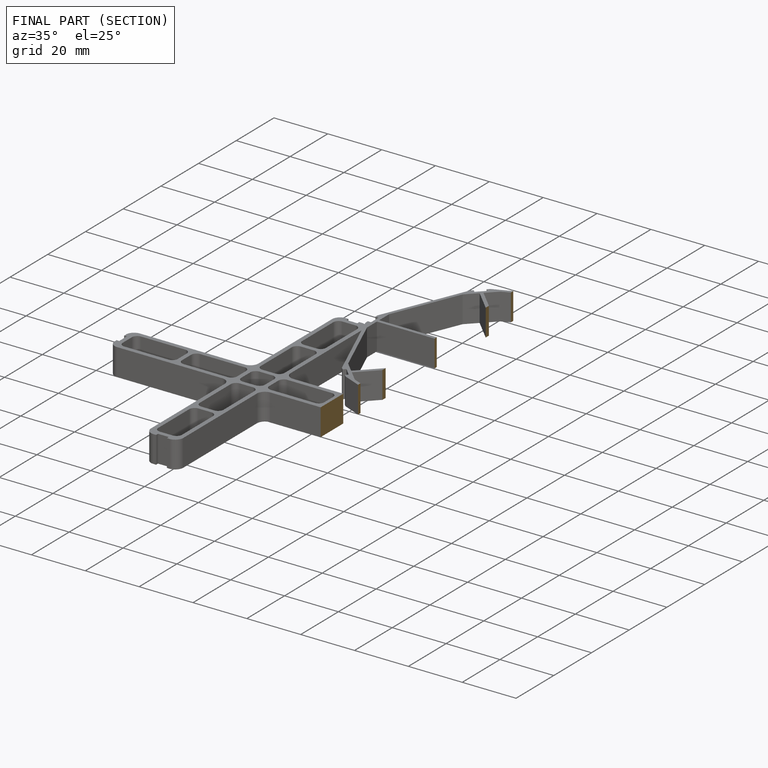
[diagram: finished part — half-section view (interior)]
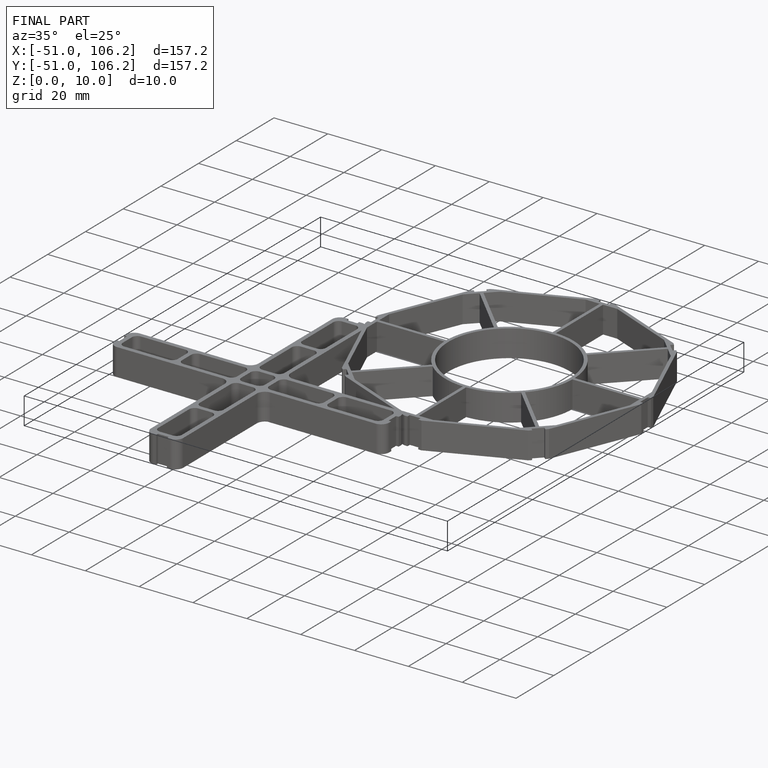
[diagram: finished part — iso view with bounding-box wireframe]
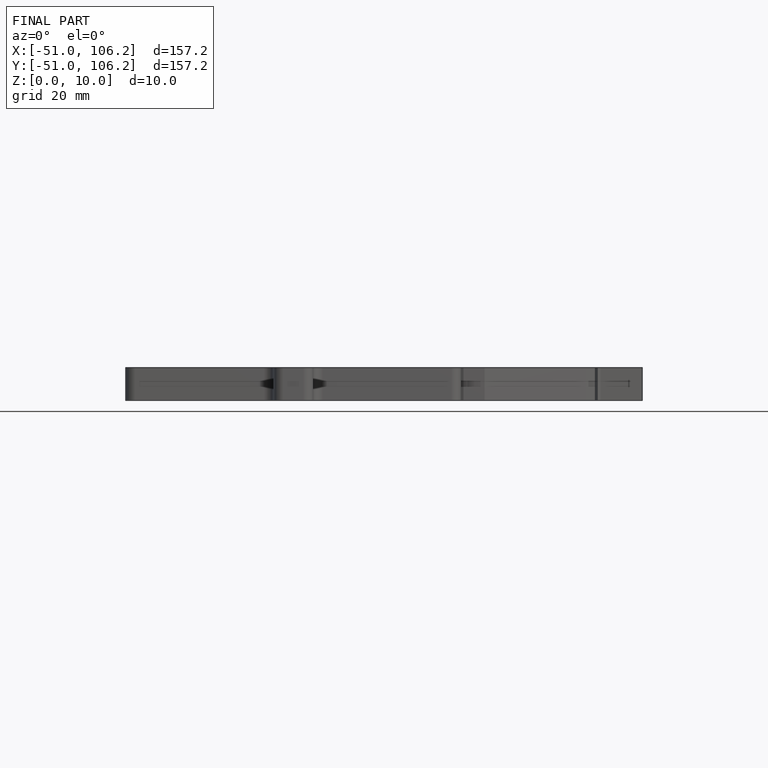
[diagram: finished part — front view with bounding-box wireframe]
